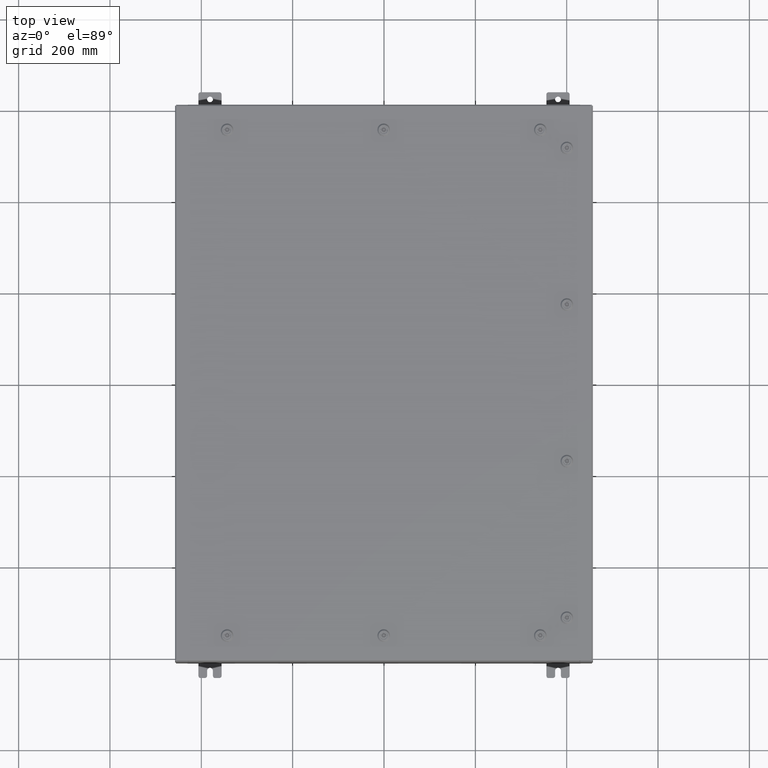
[diagram: clean part render]
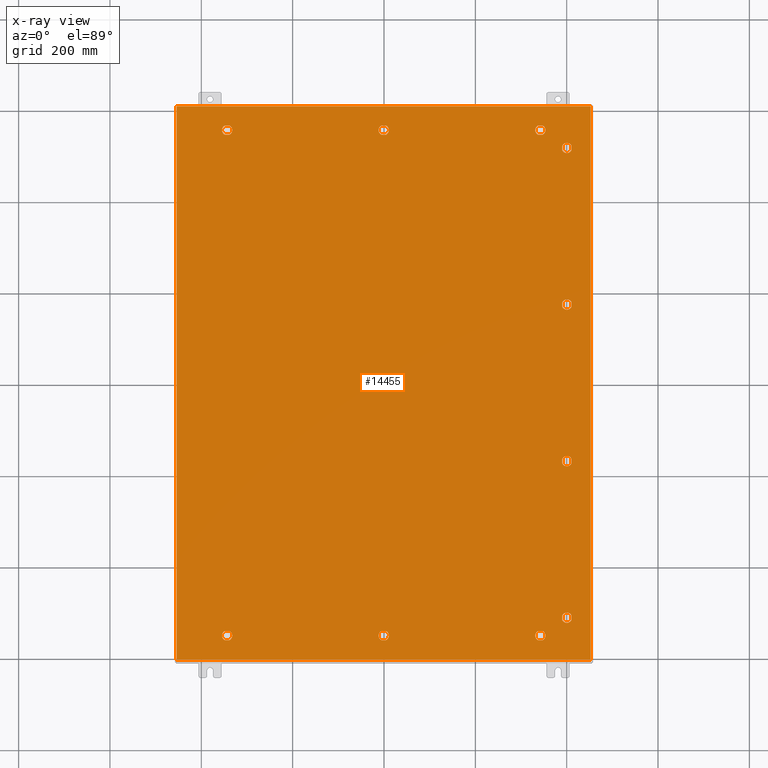
[diagram: x-ray — body ghosted, one internal face saturated and labeled with its STEP entity id]
A machine part, top view, then the same camera in x-ray: the body is ghosted and one INTERNAL B-rep face — a face not visible from any outside direction — is saturated and labeled: STEP entity #14455.
In plain terms, the highlighted planar face has unit normal (0, 0, -1).
Its self-contained STEP definition (entity closure, byte-faithful):
#259 = VERTEX_POINT ( 'NONE', #3543 ) ;
#353 = ORIENTED_EDGE ( 'NONE', *, *, #22186, .T. ) ;
#540 = CARTESIAN_POINT ( 'NONE',  ( -13.30054762473209900, -21.39280000000001500, -0.07470000000000003000 ) ) ;
#653 = AXIS2_PLACEMENT_3D ( 'NONE', #43645, #11892, #49036 ) ;
#719 = DIRECTION ( 'NONE',  ( -1.000000000000000000, 0.0000000000000000000, 0.0000000000000000000 ) ) ;
#1991 = CARTESIAN_POINT ( 'NONE',  ( 17.84980000000000200, 23.84980000000000200, -0.07470000000000000300 ) ) ;
#2097 = CARTESIAN_POINT ( 'NONE',  ( 0.1994523752679002700, -21.39280000000001200, -0.07470000000000003000 ) ) ;
#2119 = ORIENTED_EDGE ( 'NONE', *, *, #55891, .T. ) ;
#2140 = CIRCLE ( 'NONE', #42440, 0.4424999999999969000 ) ;
#2191 = LINE ( 'NONE', #540, #42847 ) ;
#2347 = DIRECTION ( 'NONE',  ( 1.000000000000000000, 1.095739467627836300E-014, 0.0000000000000000000 ) ) ;
#2380 = DIRECTION ( 'NONE',  ( -0.0000000000000000000, -0.0000000000000000000, 1.000000000000000000 ) ) ;
#2498 = CARTESIAN_POINT ( 'NONE',  ( -13.05749999999998900, 21.78780000000000400, -0.07470000000000003000 ) ) ;
#3031 = CIRCLE ( 'NONE', #67478, 0.4424999999999961700 ) ;
#3073 = AXIS2_PLACEMENT_3D ( 'NONE', #61284, #29471, #66613 ) ;
#3234 = EDGE_CURVE ( 'NONE', #46360, #62900, #5505, .T. ) ;
#3362 = CARTESIAN_POINT ( 'NONE',  ( -13.49999999999998600, 21.78780000000000400, -0.07470000000000003000 ) ) ;
#3398 = ORIENTED_EDGE ( 'NONE', *, *, #42547, .T. ) ;
#3543 = CARTESIAN_POINT ( 'NONE',  ( 13.69945237526786700, 22.18280000000000400, -0.07470000000000003000 ) ) ;
#3587 = EDGE_LOOP ( 'NONE', ( #44415, #39606, #31762, #38046 ) ) ;
#3611 = ORIENTED_EDGE ( 'NONE', *, *, #13021, .T. ) ;
#4068 = DIRECTION ( 'NONE',  ( -1.000000000000000000, 9.877868451667453200E-015, 0.0000000000000000000 ) ) ;
#4290 = CARTESIAN_POINT ( 'NONE',  ( 13.30054762473210200, 21.39280000000001200, -0.07470000000000003000 ) ) ;
#4327 = CARTESIAN_POINT ( 'NONE',  ( 13.30054762473209400, 22.18280000000000000, -0.07470000000000003000 ) ) ;
#4515 = LINE ( 'NONE', #15508, #31097 ) ;
#4676 = CIRCLE ( 'NONE', #49032, 0.4424999999999961700 ) ;
#4689 = CARTESIAN_POINT ( 'NONE',  ( -13.49999999999998600, 21.78780000000000400, -0.07470000000000003000 ) ) ;
#4802 = EDGE_CURVE ( 'NONE', #18909, #58110, #2191, .T. ) ;
#4856 = EDGE_CURVE ( 'NONE', #44115, #34907, #28819, .T. ) ;
#5166 = EDGE_CURVE ( 'NONE', #33087, #35261, #4676, .T. ) ;
#5201 = DIRECTION ( 'NONE',  ( -1.000000000000000000, 0.0000000000000000000, 0.0000000000000000000 ) ) ;
#5425 = CIRCLE ( 'NONE', #48385, 0.4424999999999972800 ) ;
#5505 = LINE ( 'NONE', #33917, #58729 ) ;
#5551 = CARTESIAN_POINT ( 'NONE',  ( -17.84979999999999500, 23.84980000000000200, -0.07470000000000000300 ) ) ;
#5859 = ORIENTED_EDGE ( 'NONE', *, *, #66644, .T. ) ;
#5885 = CARTESIAN_POINT ( 'NONE',  ( 1.529834876451987200E-014, -21.78780000000000400, -0.07470000000000003000 ) ) ;
#6000 = EDGE_LOOP ( 'NONE', ( #37485, #52992, #40583, #32308 ) ) ;
#6108 = LINE ( 'NONE', #19364, #45117 ) ;
#6143 = CARTESIAN_POINT ( 'NONE',  ( 13.49999999999998600, -21.78780000000000400, -0.07470000000000003000 ) ) ;
#6218 = AXIS2_PLACEMENT_3D ( 'NONE', #25699, #30982, #68138 ) ;
#6380 = EDGE_CURVE ( 'NONE', #36150, #259, #36980, .T. ) ;
#6877 = FACE_BOUND ( 'NONE', #23752, .T. ) ;
#6937 = CARTESIAN_POINT ( 'NONE',  ( 13.30054762473209500, -22.18280000000000000, -0.07470000000000003000 ) ) ;
#7144 = VECTOR ( 'NONE', #9163, 39.37007874015748100 ) ;
#7170 = CARTESIAN_POINT ( 'NONE',  ( 15.78780000000001500, 20.25000000000001400, -0.07470000000000003000 ) ) ;
#7318 = CIRCLE ( 'NONE', #10111, 0.4424999999999961700 ) ;
#7856 = VECTOR ( 'NONE', #41434, 39.37007874015748100 ) ;
#8008 = DIRECTION ( 'NONE',  ( -0.0000000000000000000, -0.0000000000000000000, 1.000000000000000000 ) ) ;
#8154 = VERTEX_POINT ( 'NONE', #37582 ) ;
#8559 = FACE_BOUND ( 'NONE', #64665, .T. ) ;
#8708 = DIRECTION ( 'NONE',  ( -1.000000000000000000, 0.0000000000000000000, 0.0000000000000000000 ) ) ;
#9163 = DIRECTION ( 'NONE',  ( -1.095739467627844000E-014, -1.000000000000000000, 0.0000000000000000000 ) ) ;
#10036 = DIRECTION ( 'NONE',  ( -1.000000000000000000, 0.0000000000000000000, 0.0000000000000000000 ) ) ;
#10078 = ORIENTED_EDGE ( 'NONE', *, *, #35316, .F. ) ;
#10111 = AXIS2_PLACEMENT_3D ( 'NONE', #14662, #51788, #20005 ) ;
#10715 = CIRCLE ( 'NONE', #28329, 0.4424999999999972800 ) ;
#10790 = ORIENTED_EDGE ( 'NONE', *, *, #51025, .T. ) ;
#10923 = ORIENTED_EDGE ( 'NONE', *, *, #11524, .T. ) ;
#11012 = EDGE_CURVE ( 'NONE', #26034, #18909, #19647, .T. ) ;
#11115 = DIRECTION ( 'NONE',  ( 1.000000000000000000, -0.0000000000000000000, -0.0000000000000000000 ) ) ;
#11193 = DIRECTION ( 'NONE',  ( -0.0000000000000000000, -0.0000000000000000000, 1.000000000000000000 ) ) ;
#11241 = DIRECTION ( 'NONE',  ( -1.000000000000000000, 0.0000000000000000000, 0.0000000000000000000 ) ) ;
#11284 = CIRCLE ( 'NONE', #46063, 0.4424999999999969000 ) ;
#11416 = DIRECTION ( 'NONE',  ( -1.000000000000000000, -0.0000000000000000000, -0.0000000000000000000 ) ) ;
#11511 = DIRECTION ( 'NONE',  ( -1.000000000000000000, -9.877868451667478400E-015, 0.0000000000000000000 ) ) ;
#11524 = EDGE_CURVE ( 'NONE', #59096, #32639, #29557, .T. ) ;
#11704 = CARTESIAN_POINT ( 'NONE',  ( -0.1994523752678657700, 22.18280000000000400, -0.07470000000000003000 ) ) ;
#11892 = DIRECTION ( 'NONE',  ( -0.0000000000000000000, -0.0000000000000000000, 1.000000000000000000 ) ) ;
#12051 = EDGE_CURVE ( 'NONE', #25671, #8154, #55291, .T. ) ;
#12070 = DIRECTION ( 'NONE',  ( -0.0000000000000000000, -0.0000000000000000000, 1.000000000000000000 ) ) ;
#12169 = CIRCLE ( 'NONE', #41188, 0.4424999999999983400 ) ;
#12518 = DIRECTION ( 'NONE',  ( -1.000000000000000000, 0.0000000000000000000, 0.0000000000000000000 ) ) ;
#12578 = EDGE_CURVE ( 'NONE', #27486, #66689, #24499, .T. ) ;
#12709 = CARTESIAN_POINT ( 'NONE',  ( 15.78780000000001000, 6.750000000000014200, -0.07470000000000003000 ) ) ;
#12773 = VERTEX_POINT ( 'NONE', #36614 ) ;
#13021 = EDGE_CURVE ( 'NONE', #55147, #36150, #25311, .T. ) ;
#13463 = VERTEX_POINT ( 'NONE', #21414 ) ;
#13488 = VERTEX_POINT ( 'NONE', #63901 ) ;
#13681 = ORIENTED_EDGE ( 'NONE', *, *, #3234, .T. ) ;
#13908 = CARTESIAN_POINT ( 'NONE',  ( -13.69945237526786900, 21.39280000000001200, -0.07470000000000003000 ) ) ;
#13966 = VERTEX_POINT ( 'NONE', #38465 ) ;
#14098 = EDGE_CURVE ( 'NONE', #58696, #65869, #20250, .T. ) ;
#14182 = DIRECTION ( 'NONE',  ( -0.0000000000000000000, -0.0000000000000000000, 1.000000000000000000 ) ) ;
#14455 = ADVANCED_FACE ( 'NONE', ( #50922, #36806, #8559, #63419, #49256, #35164, #21041, #6877, #61744, #47554, #33472 ), #57495, .T. ) ;
#14513 = DIRECTION ( 'NONE',  ( -0.0000000000000000000, -0.0000000000000000000, 1.000000000000000000 ) ) ;
#14662 = CARTESIAN_POINT ( 'NONE',  ( 15.78780000000001500, 20.25000000000001400, -0.07470000000000003000 ) ) ;
#14751 = CIRCLE ( 'NONE', #47344, 0.4424999999999983400 ) ;
#15508 = CARTESIAN_POINT ( 'NONE',  ( -17.84979999999999500, 23.84980000000000900, -0.07470000000000129300 ) ) ;
#15542 = VECTOR ( 'NONE', #57743, 39.37007874015748100 ) ;
#15736 = DIRECTION ( 'NONE',  ( -5.478697338139280800E-015, 1.000000000000000000, 0.0000000000000000000 ) ) ;
#15835 = ORIENTED_EDGE ( 'NONE', *, *, #37731, .T. ) ;
#16002 = CARTESIAN_POINT ( 'NONE',  ( -13.69945237526786700, 22.18280000000000400, -0.07470000000000003000 ) ) ;
#16237 = DIRECTION ( 'NONE',  ( -0.0000000000000000000, -0.0000000000000000000, 1.000000000000000000 ) ) ;
#16452 = CARTESIAN_POINT ( 'NONE',  ( -13.30054762473209200, -22.18280000000000400, -0.07470000000000003000 ) ) ;
#16459 = LINE ( 'NONE', #68467, #58850 ) ;
#17155 = CARTESIAN_POINT ( 'NONE',  ( 16.18280000000001100, 20.44945237526789600, -0.07470000000000000300 ) ) ;
#17524 = CARTESIAN_POINT ( 'NONE',  ( 1.529834876451987200E-014, 21.78780000000000400, -0.07470000000000003000 ) ) ;
#17824 = DIRECTION ( 'NONE',  ( 1.000000000000000000, 0.0000000000000000000, 0.0000000000000000000 ) ) ;
#17938 = EDGE_LOOP ( 'NONE', ( #50821, #10923, #65109, #18164, #63607 ) ) ;
#18085 = DIRECTION ( 'NONE',  ( -1.000000000000000000, 0.0000000000000000000, 0.0000000000000000000 ) ) ;
#18164 = ORIENTED_EDGE ( 'NONE', *, *, #62849, .T. ) ;
#18909 = VERTEX_POINT ( 'NONE', #32115 ) ;
#19227 = EDGE_CURVE ( 'NONE', #38899, #25241, #67144, .T. ) ;
#19364 = CARTESIAN_POINT ( 'NONE',  ( 13.30054762473210400, -21.39280000000001200, -0.07470000000000003000 ) ) ;
#19647 = CIRCLE ( 'NONE', #21723, 0.4424999999999961700 ) ;
#19676 = VECTOR ( 'NONE', #11416, 39.37007874015748100 ) ;
#19733 = EDGE_CURVE ( 'NONE', #53001, #13966, #62971, .T. ) ;
#20005 = DIRECTION ( 'NONE',  ( -1.000000000000000000, 0.0000000000000000000, 0.0000000000000000000 ) ) ;
#20250 = LINE ( 'NONE', #49596, #32654 ) ;
#20288 = ORIENTED_EDGE ( 'NONE', *, *, #66531, .T. ) ;
#20371 = CARTESIAN_POINT ( 'NONE',  ( 16.18280000000000400, -6.949452375267900300, -0.07470000000000003000 ) ) ;
#20562 = DIRECTION ( 'NONE',  ( -0.0000000000000000000, -0.0000000000000000000, 1.000000000000000000 ) ) ;
#20843 = DIRECTION ( 'NONE',  ( 0.0000000000000000000, -1.000000000000000000, 0.0000000000000000000 ) ) ;
#20988 = LINE ( 'NONE', #61390, #47509 ) ;
#21041 = FACE_BOUND ( 'NONE', #17938, .T. ) ;
#21314 = CARTESIAN_POINT ( 'NONE',  ( 0.1994523752678995500, 21.39280000000001200, -0.07470000000000000300 ) ) ;
#21333 = LINE ( 'NONE', #53913, #19676 ) ;
#21414 = CARTESIAN_POINT ( 'NONE',  ( 13.94249999999998500, -21.78780000000000400, -0.07470000000000003000 ) ) ;
#21453 = VERTEX_POINT ( 'NONE', #68186 ) ;
#21723 = AXIS2_PLACEMENT_3D ( 'NONE', #52348, #20562, #57705 ) ;
#21869 = VERTEX_POINT ( 'NONE', #39317 ) ;
#22108 = AXIS2_PLACEMENT_3D ( 'NONE', #45940, #14182, #51309 ) ;
#22186 = EDGE_CURVE ( 'NONE', #34907, #55729, #5425, .T. ) ;
#22410 = CARTESIAN_POINT ( 'NONE',  ( -13.05749999999998700, -21.78780000000000800, -0.07470000000000003000 ) ) ;
#22797 = AXIS2_PLACEMENT_3D ( 'NONE', #4689, #41771, #10036 ) ;
#23093 = CARTESIAN_POINT ( 'NONE',  ( 13.49999999999998600, 21.78780000000000400, -0.07470000000000003000 ) ) ;
#23100 = CARTESIAN_POINT ( 'NONE',  ( 15.39280000000001200, -6.550547624732131700, -0.07470000000000003000 ) ) ;
#23107 = EDGE_LOOP ( 'NONE', ( #28604, #13681, #31960, #65233 ) ) ;
#23240 = ORIENTED_EDGE ( 'NONE', *, *, #12578, .T. ) ;
#23331 = EDGE_CURVE ( 'NONE', #63773, #33087, #27225, .T. ) ;
#23342 = CIRCLE ( 'NONE', #33457, 0.4424999999999961700 ) ;
#23752 = EDGE_LOOP ( 'NONE', ( #3611, #66698, #20288, #54338, #64414 ) ) ;
#23904 = VECTOR ( 'NONE', #24847, 39.37007874015748100 ) ;
#24499 = CIRCLE ( 'NONE', #34214, 0.4424999999999983400 ) ;
#24514 = VECTOR ( 'NONE', #25140, 39.37007874015748100 ) ;
#24847 = DIRECTION ( 'NONE',  ( 1.095739467627844000E-014, -1.000000000000000000, 0.0000000000000000000 ) ) ;
#25002 = CARTESIAN_POINT ( 'NONE',  ( -17.84979999999999800, -23.84979999999999800, -0.07470000000000000300 ) ) ;
#25140 = DIRECTION ( 'NONE',  ( -1.095739467627835000E-014, -1.000000000000000000, 0.0000000000000000000 ) ) ;
#25193 = CARTESIAN_POINT ( 'NONE',  ( 13.69945237526787100, -21.39280000000001200, -0.07470000000000003000 ) ) ;
#25241 = VERTEX_POINT ( 'NONE', #26210 ) ;
#25311 = CIRCLE ( 'NONE', #57828, 0.4424999999999961700 ) ;
#25423 = VERTEX_POINT ( 'NONE', #28043 ) ;
#25590 = CARTESIAN_POINT ( 'NONE',  ( -13.30054762473210200, 21.39280000000001200, -0.07470000000000000300 ) ) ;
#25671 = VERTEX_POINT ( 'NONE', #25002 ) ;
#25699 = CARTESIAN_POINT ( 'NONE',  ( 0.0000000000000000000, 0.0000000000000000000, -0.07470000000000000300 ) ) ;
#25824 = VERTEX_POINT ( 'NONE', #41401 ) ;
#26034 = VERTEX_POINT ( 'NONE', #22410 ) ;
#26156 = DIRECTION ( 'NONE',  ( -0.0000000000000000000, -0.0000000000000000000, 1.000000000000000000 ) ) ;
#26210 = CARTESIAN_POINT ( 'NONE',  ( 13.30054762473210200, 21.39280000000001200, -0.07470000000000003000 ) ) ;
#26254 = CIRCLE ( 'NONE', #3073, 0.4424999999999983400 ) ;
#26518 = CARTESIAN_POINT ( 'NONE',  ( -13.49999999999998200, -21.78780000000000800, -0.07470000000000003000 ) ) ;
#26558 = CARTESIAN_POINT ( 'NONE',  ( 15.78780000000000800, -6.750000000000014200, -0.07470000000000003000 ) ) ;
#27225 = LINE ( 'NONE', #61999, #23904 ) ;
#27486 = VERTEX_POINT ( 'NONE', #2498 ) ;
#27707 = DIRECTION ( 'NONE',  ( 1.095739467627835000E-014, -1.000000000000000000, 0.0000000000000000000 ) ) ;
#27900 = VECTOR ( 'NONE', #2347, 39.37007874015748100 ) ;
#28043 = CARTESIAN_POINT ( 'NONE',  ( 15.39280000000001500, -6.949452375267905600, -0.07470000000000000300 ) ) ;
#28329 = AXIS2_PLACEMENT_3D ( 'NONE', #5885, #42979, #11241 ) ;
#28336 = CARTESIAN_POINT ( 'NONE',  ( 0.1994523752678995500, -21.39280000000001200, -0.07470000000000003000 ) ) ;
#28551 = VERTEX_POINT ( 'NONE', #58608 ) ;
#28604 = ORIENTED_EDGE ( 'NONE', *, *, #64940, .T. ) ;
#28819 = CIRCLE ( 'NONE', #46772, 0.4424999999999972800 ) ;
#28848 = CARTESIAN_POINT ( 'NONE',  ( 0.1994523752679067700, -22.18280000000000000, -0.07470000000000003000 ) ) ;
#28969 = LINE ( 'NONE', #42972, #43003 ) ;
#29471 = DIRECTION ( 'NONE',  ( -0.0000000000000000000, -0.0000000000000000000, 1.000000000000000000 ) ) ;
#29557 = LINE ( 'NONE', #28848, #27900 ) ;
#29574 = DIRECTION ( 'NONE',  ( 0.0000000000000000000, 1.000000000000000000, 0.0000000000000000000 ) ) ;
#29959 = DIRECTION ( 'NONE',  ( -0.0000000000000000000, -0.0000000000000000000, 1.000000000000000000 ) ) ;
#30052 = LINE ( 'NONE', #62601, #56639 ) ;
#30139 = CARTESIAN_POINT ( 'NONE',  ( -13.49999999999998600, 21.78780000000000400, -0.07470000000000003000 ) ) ;
#30384 = VERTEX_POINT ( 'NONE', #53025 ) ;
#30533 = ORIENTED_EDGE ( 'NONE', *, *, #12051, .F. ) ;
#30951 = CARTESIAN_POINT ( 'NONE',  ( 1.529834876451987200E-014, 21.78780000000000400, -0.07470000000000003000 ) ) ;
#30982 = DIRECTION ( 'NONE',  ( 0.0000000000000000000, 0.0000000000000000000, -1.000000000000000000 ) ) ;
#31038 = ORIENTED_EDGE ( 'NONE', *, *, #19733, .T. ) ;
#31097 = VECTOR ( 'NONE', #20843, 39.37007874015748100 ) ;
#31485 = VECTOR ( 'NONE', #35670, 39.37007874015748100 ) ;
#31762 = ORIENTED_EDGE ( 'NONE', *, *, #5166, .T. ) ;
#31820 = DIRECTION ( 'NONE',  ( -1.000000000000000000, 0.0000000000000000000, 0.0000000000000000000 ) ) ;
#31858 = DIRECTION ( 'NONE',  ( -1.000000000000000000, 0.0000000000000000000, 0.0000000000000000000 ) ) ;
#31960 = ORIENTED_EDGE ( 'NONE', *, *, #49332, .T. ) ;
#31978 = ORIENTED_EDGE ( 'NONE', *, *, #32394, .T. ) ;
#32115 = CARTESIAN_POINT ( 'NONE',  ( -13.30054762473209900, -21.39280000000001500, -0.07470000000000003000 ) ) ;
#32284 = CARTESIAN_POINT ( 'NONE',  ( 16.18280000000001500, -20.44945237526789600, -0.07470000000000003000 ) ) ;
#32308 = ORIENTED_EDGE ( 'NONE', *, *, #35122, .T. ) ;
#32345 = DIRECTION ( 'NONE',  ( -1.000000000000000000, 1.095739467627836300E-014, 0.0000000000000000000 ) ) ;
#32394 = EDGE_CURVE ( 'NONE', #13463, #45194, #40587, .T. ) ;
#32398 = EDGE_CURVE ( 'NONE', #35933, #25423, #42210, .T. ) ;
#32515 = DIRECTION ( 'NONE',  ( -0.0000000000000000000, -0.0000000000000000000, 1.000000000000000000 ) ) ;
#32639 = VERTEX_POINT ( 'NONE', #66810 ) ;
#32654 = VECTOR ( 'NONE', #17824, 39.37007874015748100 ) ;
#32839 = AXIS2_PLACEMENT_3D ( 'NONE', #7170, #44264, #12518 ) ;
#33087 = VERTEX_POINT ( 'NONE', #42557 ) ;
#33263 = VERTEX_POINT ( 'NONE', #44178 ) ;
#33456 = ORIENTED_EDGE ( 'NONE', *, *, #62296, .T. ) ;
#33457 = AXIS2_PLACEMENT_3D ( 'NONE', #26518, #63676, #31820 ) ;
#33469 = EDGE_LOOP ( 'NONE', ( #47010, #31978, #40936, #2119, #31038 ) ) ;
#33472 = FACE_OUTER_BOUND ( 'NONE', #36129, .T. ) ;
#33917 = CARTESIAN_POINT ( 'NONE',  ( 16.18280000000000700, 6.949452375267900300, -0.07470000000000003000 ) ) ;
#33931 = EDGE_LOOP ( 'NONE', ( #63861, #57586, #57886, #353, #15835 ) ) ;
#33942 = EDGE_CURVE ( 'NONE', #12773, #30384, #64643, .T. ) ;
#34206 = CARTESIAN_POINT ( 'NONE',  ( 13.49999999999998600, 21.78780000000000400, -0.07470000000000003000 ) ) ;
#34214 = AXIS2_PLACEMENT_3D ( 'NONE', #30139, #67282, #35468 ) ;
#34342 = CARTESIAN_POINT ( 'NONE',  ( 13.30054762473210400, -21.39280000000001200, -0.07470000000000000300 ) ) ;
#34817 = DIRECTION ( 'NONE',  ( -0.0000000000000000000, -0.0000000000000000000, 1.000000000000000000 ) ) ;
#34907 = VERTEX_POINT ( 'NONE', #65033 ) ;
#35122 = EDGE_CURVE ( 'NONE', #51633, #25824, #45388, .T. ) ;
#35132 = EDGE_CURVE ( 'NONE', #13488, #63773, #3031, .T. ) ;
#35164 = FACE_BOUND ( 'NONE', #65254, .T. ) ;
#35261 = VERTEX_POINT ( 'NONE', #32284 ) ;
#35272 = EDGE_CURVE ( 'NONE', #13966, #13463, #12169, .T. ) ;
#35316 = EDGE_CURVE ( 'NONE', #37100, #58468, #21333, .T. ) ;
#35396 = CARTESIAN_POINT ( 'NONE',  ( 13.30054762473209500, -22.18280000000000000, -0.07470000000000003000 ) ) ;
#35468 = DIRECTION ( 'NONE',  ( -1.000000000000000000, 0.0000000000000000000, 0.0000000000000000000 ) ) ;
#35670 = DIRECTION ( 'NONE',  ( 1.000000000000000000, 0.0000000000000000000, 0.0000000000000000000 ) ) ;
#35933 = VERTEX_POINT ( 'NONE', #23100 ) ;
#35984 = VERTEX_POINT ( 'NONE', #44608 ) ;
#36019 = CARTESIAN_POINT ( 'NONE',  ( 15.39280000000001400, 6.550547624732131700, -0.07470000000000003000 ) ) ;
#36129 = EDGE_LOOP ( 'NONE', ( #46696, #30533, #45236, #10078 ) ) ;
#36150 = VERTEX_POINT ( 'NONE', #40650 ) ;
#36316 = DIRECTION ( 'NONE',  ( -1.000000000000000000, 0.0000000000000000000, 0.0000000000000000000 ) ) ;
#36345 = DIRECTION ( 'NONE',  ( -0.0000000000000000000, -0.0000000000000000000, 1.000000000000000000 ) ) ;
#36571 = DIRECTION ( 'NONE',  ( -5.478697338139235000E-015, 1.000000000000000000, 0.0000000000000000000 ) ) ;
#36614 = CARTESIAN_POINT ( 'NONE',  ( -13.69945237526786600, -22.18280000000000700, -0.07470000000000003000 ) ) ;
#36784 = CARTESIAN_POINT ( 'NONE',  ( 16.18280000000000400, -6.949452375267900300, -0.07470000000000003000 ) ) ;
#36806 = FACE_BOUND ( 'NONE', #6000, .T. ) ;
#36980 = CIRCLE ( 'NONE', #59340, 0.4424999999999961700 ) ;
#37100 = VERTEX_POINT ( 'NONE', #1991 ) ;
#37191 = EDGE_CURVE ( 'NONE', #35984, #44115, #47230, .T. ) ;
#37485 = ORIENTED_EDGE ( 'NONE', *, *, #55024, .T. ) ;
#37582 = CARTESIAN_POINT ( 'NONE',  ( 17.84980000000000200, -23.84979999999999800, -0.07470000000000000300 ) ) ;
#37731 = EDGE_CURVE ( 'NONE', #55729, #37838, #28969, .T. ) ;
#37838 = VERTEX_POINT ( 'NONE', #11704 ) ;
#38046 = ORIENTED_EDGE ( 'NONE', *, *, #62452, .T. ) ;
#38156 = AXIS2_PLACEMENT_3D ( 'NONE', #3362, #40476, #8708 ) ;
#38465 = CARTESIAN_POINT ( 'NONE',  ( 13.69945237526786900, -22.18280000000000400, -0.07470000000000003000 ) ) ;
#38521 = CARTESIAN_POINT ( 'NONE',  ( 16.18280000000000700, 6.550547624732131700, -0.07470000000000003000 ) ) ;
#38899 = VERTEX_POINT ( 'NONE', #51200 ) ;
#39070 = CIRCLE ( 'NONE', #22797, 0.4424999999999961700 ) ;
#39317 = CARTESIAN_POINT ( 'NONE',  ( 0.4425000000000125500, -21.78780000000000400, -0.07470000000000003000 ) ) ;
#39368 = CIRCLE ( 'NONE', #38156, 0.4424999999999983400 ) ;
#39379 = CIRCLE ( 'NONE', #32839, 0.4424999999999961700 ) ;
#39507 = DIRECTION ( 'NONE',  ( -1.000000000000000000, 0.0000000000000000000, 0.0000000000000000000 ) ) ;
#39606 = ORIENTED_EDGE ( 'NONE', *, *, #23331, .T. ) ;
#39785 = CARTESIAN_POINT ( 'NONE',  ( -13.49999999999998200, -21.78780000000000800, -0.07470000000000003000 ) ) ;
#39871 = ORIENTED_EDGE ( 'NONE', *, *, #14098, .T. ) ;
#40025 = AXIS2_PLACEMENT_3D ( 'NONE', #12709, #49865, #18085 ) ;
#40476 = DIRECTION ( 'NONE',  ( -0.0000000000000000000, -0.0000000000000000000, 1.000000000000000000 ) ) ;
#40583 = ORIENTED_EDGE ( 'NONE', *, *, #60038, .T. ) ;
#40587 = CIRCLE ( 'NONE', #653, 0.4424999999999983400 ) ;
#40650 = CARTESIAN_POINT ( 'NONE',  ( 13.94249999999998300, 21.78780000000000400, -0.07470000000000003000 ) ) ;
#40916 = CARTESIAN_POINT ( 'NONE',  ( 15.39280000000002200, 20.44945237526790300, -0.07470000000000003000 ) ) ;
#40936 = ORIENTED_EDGE ( 'NONE', *, *, #67429, .T. ) ;
#41188 = AXIS2_PLACEMENT_3D ( 'NONE', #64373, #32515, #719 ) ;
#41401 = CARTESIAN_POINT ( 'NONE',  ( 16.18280000000000700, -6.550547624732131700, -0.07470000000000003000 ) ) ;
#41434 = DIRECTION ( 'NONE',  ( -1.000000000000000000, -1.095739467627832000E-014, 0.0000000000000000000 ) ) ;
#41771 = DIRECTION ( 'NONE',  ( -0.0000000000000000000, -0.0000000000000000000, 1.000000000000000000 ) ) ;
#42105 = ORIENTED_EDGE ( 'NONE', *, *, #46440, .T. ) ;
#42210 = LINE ( 'NONE', #59516, #67226 ) ;
#42391 = VERTEX_POINT ( 'NONE', #49338 ) ;
#42440 = AXIS2_PLACEMENT_3D ( 'NONE', #30951, #68113, #36316 ) ;
#42547 = EDGE_CURVE ( 'NONE', #58110, #12773, #63636, .T. ) ;
#42557 = CARTESIAN_POINT ( 'NONE',  ( 15.39280000000002800, -20.44945237526790300, -0.07470000000000000300 ) ) ;
#42721 = EDGE_CURVE ( 'NONE', #33263, #28551, #47822, .T. ) ;
#42830 = EDGE_CURVE ( 'NONE', #37838, #35984, #2140, .T. ) ;
#42847 = VECTOR ( 'NONE', #5201, 39.37007874015748100 ) ;
#42882 = AXIS2_PLACEMENT_3D ( 'NONE', #61769, #29959, #67099 ) ;
#42939 = CARTESIAN_POINT ( 'NONE',  ( 1.529834876451987200E-014, -21.78780000000000400, -0.07470000000000003000 ) ) ;
#42972 = CARTESIAN_POINT ( 'NONE',  ( 0.1994523752679067700, 22.18280000000000000, -0.07470000000000003000 ) ) ;
#42979 = DIRECTION ( 'NONE',  ( -0.0000000000000000000, -0.0000000000000000000, 1.000000000000000000 ) ) ;
#42982 = EDGE_CURVE ( 'NONE', #52730, #59096, #11284, .T. ) ;
#43003 = VECTOR ( 'NONE', #32345, 39.37007874015748100 ) ;
#43236 = DIRECTION ( 'NONE',  ( -0.0000000000000000000, -0.0000000000000000000, 1.000000000000000000 ) ) ;
#43314 = ORIENTED_EDGE ( 'NONE', *, *, #33942, .T. ) ;
#43645 = CARTESIAN_POINT ( 'NONE',  ( 13.49999999999998600, -21.78780000000000400, -0.07470000000000003000 ) ) ;
#43785 = AXIS2_PLACEMENT_3D ( 'NONE', #39785, #8008, #45102 ) ;
#43832 = CARTESIAN_POINT ( 'NONE',  ( 1.529834876451987200E-014, -21.78780000000000400, -0.07470000000000003000 ) ) ;
#43965 = CIRCLE ( 'NONE', #42882, 0.4424999999999983400 ) ;
#43984 = CARTESIAN_POINT ( 'NONE',  ( -0.1994523752678657700, -22.18280000000000400, -0.07470000000000003000 ) ) ;
#44115 = VERTEX_POINT ( 'NONE', #21314 ) ;
#44178 = CARTESIAN_POINT ( 'NONE',  ( 15.39280000000002200, 20.44945237526790300, -0.07470000000000003000 ) ) ;
#44264 = DIRECTION ( 'NONE',  ( -0.0000000000000000000, -0.0000000000000000000, 1.000000000000000000 ) ) ;
#44415 = ORIENTED_EDGE ( 'NONE', *, *, #35132, .T. ) ;
#44426 = DIRECTION ( 'NONE',  ( -1.000000000000000000, 0.0000000000000000000, 0.0000000000000000000 ) ) ;
#44608 = CARTESIAN_POINT ( 'NONE',  ( -0.1994523752678689600, 21.39280000000001200, -0.07470000000000003000 ) ) ;
#44935 = EDGE_CURVE ( 'NONE', #65869, #27486, #39368, .T. ) ;
#45058 = ORIENTED_EDGE ( 'NONE', *, *, #42721, .T. ) ;
#45102 = DIRECTION ( 'NONE',  ( -1.000000000000000000, 0.0000000000000000000, 0.0000000000000000000 ) ) ;
#45117 = VECTOR ( 'NONE', #67171, 39.37007874015748100 ) ;
#45184 = LINE ( 'NONE', #52632, #57725 ) ;
#45194 = VERTEX_POINT ( 'NONE', #25193 ) ;
#45236 = ORIENTED_EDGE ( 'NONE', *, *, #66605, .F. ) ;
#45388 = LINE ( 'NONE', #20371, #15542 ) ;
#45595 = LINE ( 'NONE', #4290, #31485 ) ;
#45830 = CARTESIAN_POINT ( 'NONE',  ( -13.69945237526786700, -21.39280000000001500, -0.07470000000000003000 ) ) ;
#45831 = EDGE_CURVE ( 'NONE', #21453, #68244, #54420, .T. ) ;
#45940 = CARTESIAN_POINT ( 'NONE',  ( 13.49999999999998600, 21.78780000000000400, -0.07470000000000003000 ) ) ;
#46063 = AXIS2_PLACEMENT_3D ( 'NONE', #42939, #11193, #48326 ) ;
#46279 = CARTESIAN_POINT ( 'NONE',  ( 1.529834876451987200E-014, 21.78780000000000400, -0.07470000000000003000 ) ) ;
#46360 = VERTEX_POINT ( 'NONE', #38521 ) ;
#46440 = EDGE_CURVE ( 'NONE', #28551, #42391, #39379, .T. ) ;
#46696 = ORIENTED_EDGE ( 'NONE', *, *, #57370, .F. ) ;
#46772 = AXIS2_PLACEMENT_3D ( 'NONE', #17524, #36345, #4068 ) ;
#47010 = ORIENTED_EDGE ( 'NONE', *, *, #35272, .T. ) ;
#47230 = LINE ( 'NONE', #50291, #59752 ) ;
#47271 = ORIENTED_EDGE ( 'NONE', *, *, #58232, .T. ) ;
#47344 = AXIS2_PLACEMENT_3D ( 'NONE', #26558, #63717, #31858 ) ;
#47509 = VECTOR ( 'NONE', #29574, 39.37007874015748100 ) ;
#47554 = FACE_BOUND ( 'NONE', #33931, .T. ) ;
#47822 = LINE ( 'NONE', #40916, #7144 ) ;
#48222 = DIRECTION ( 'NONE',  ( 1.000000000000000000, 1.095739467627832000E-014, 0.0000000000000000000 ) ) ;
#48249 = CARTESIAN_POINT ( 'NONE',  ( -17.84979999999999800, -23.84980000000000200, -0.07469999999999804600 ) ) ;
#48326 = DIRECTION ( 'NONE',  ( -1.000000000000000000, 0.0000000000000000000, 0.0000000000000000000 ) ) ;
#48372 = ORIENTED_EDGE ( 'NONE', *, *, #51122, .T. ) ;
#48385 = AXIS2_PLACEMENT_3D ( 'NONE', #46279, #14513, #51645 ) ;
#49032 = AXIS2_PLACEMENT_3D ( 'NONE', #68836, #16237, #68603 ) ;
#49036 = DIRECTION ( 'NONE',  ( -1.000000000000000000, 0.0000000000000000000, 0.0000000000000000000 ) ) ;
#49176 = VERTEX_POINT ( 'NONE', #17155 ) ;
#49225 = DIRECTION ( 'NONE',  ( -1.000000000000000000, 9.877868451667453200E-015, 0.0000000000000000000 ) ) ;
#49256 = FACE_BOUND ( 'NONE', #33469, .T. ) ;
#49332 = EDGE_CURVE ( 'NONE', #62900, #21453, #64166, .T. ) ;
#49338 = CARTESIAN_POINT ( 'NONE',  ( 16.18280000000001500, 20.05054762473213300, -0.07470000000000003000 ) ) ;
#49596 = CARTESIAN_POINT ( 'NONE',  ( -13.30054762473210200, 21.39280000000001200, -0.07470000000000003000 ) ) ;
#49865 = DIRECTION ( 'NONE',  ( -0.0000000000000000000, -0.0000000000000000000, 1.000000000000000000 ) ) ;
#50146 = CIRCLE ( 'NONE', #55443, 0.4424999999999961700 ) ;
#50291 = CARTESIAN_POINT ( 'NONE',  ( 0.1994523752678995500, 21.39280000000001200, -0.07470000000000003000 ) ) ;
#50483 = VECTOR ( 'NONE', #67206, 39.37007874015748100 ) ;
#50803 = VECTOR ( 'NONE', #44426, 39.37007874015748100 ) ;
#50821 = ORIENTED_EDGE ( 'NONE', *, *, #42982, .T. ) ;
#50922 = FACE_BOUND ( 'NONE', #3587, .T. ) ;
#51025 = EDGE_CURVE ( 'NONE', #60463, #58696, #39070, .T. ) ;
#51122 = EDGE_CURVE ( 'NONE', #30384, #26034, #23342, .T. ) ;
#51200 = CARTESIAN_POINT ( 'NONE',  ( 13.30054762473209400, 22.18280000000000000, -0.07470000000000000300 ) ) ;
#51309 = DIRECTION ( 'NONE',  ( -1.000000000000000000, 0.0000000000000000000, 0.0000000000000000000 ) ) ;
#51351 = CARTESIAN_POINT ( 'NONE',  ( 15.39280000000001900, 6.949452375267904700, -0.07470000000000003000 ) ) ;
#51510 = AXIS2_PLACEMENT_3D ( 'NONE', #43832, #12070, #49225 ) ;
#51633 = VERTEX_POINT ( 'NONE', #36784 ) ;
#51645 = DIRECTION ( 'NONE',  ( -1.000000000000000000, 0.0000000000000000000, 0.0000000000000000000 ) ) ;
#51788 = DIRECTION ( 'NONE',  ( -0.0000000000000000000, -0.0000000000000000000, 1.000000000000000000 ) ) ;
#52348 = CARTESIAN_POINT ( 'NONE',  ( -13.49999999999998200, -21.78780000000000800, -0.07470000000000003000 ) ) ;
#52401 = CARTESIAN_POINT ( 'NONE',  ( 0.1994523752679049900, 22.18280000000000000, -0.07470000000000003000 ) ) ;
#52632 = CARTESIAN_POINT ( 'NONE',  ( 16.18280000000001100, 20.44945237526789600, -0.07470000000000003000 ) ) ;
#52726 = ORIENTED_EDGE ( 'NONE', *, *, #11012, .T. ) ;
#52730 = VERTEX_POINT ( 'NONE', #62747 ) ;
#52992 = ORIENTED_EDGE ( 'NONE', *, *, #32398, .T. ) ;
#53001 = VERTEX_POINT ( 'NONE', #6937 ) ;
#53025 = CARTESIAN_POINT ( 'NONE',  ( -13.30054762473209200, -22.18280000000000400, -0.07470000000000000300 ) ) ;
#53129 = VERTEX_POINT ( 'NONE', #34342 ) ;
#53602 = VECTOR ( 'NONE', #11115, 39.37007874015748100 ) ;
#53913 = CARTESIAN_POINT ( 'NONE',  ( 17.84980000000000200, 23.84980000000000900, -0.07469999999999804600 ) ) ;
#54168 = LINE ( 'NONE', #28336, #50803 ) ;
#54338 = ORIENTED_EDGE ( 'NONE', *, *, #19227, .T. ) ;
#54420 = LINE ( 'NONE', #51351, #24514 ) ;
#55024 = EDGE_CURVE ( 'NONE', #25824, #35933, #14751, .T. ) ;
#55147 = VERTEX_POINT ( 'NONE', #59746 ) ;
#55275 = DIRECTION ( 'NONE',  ( -1.000000000000000000, 0.0000000000000000000, 0.0000000000000000000 ) ) ;
#55291 = LINE ( 'NONE', #48249, #53602 ) ;
#55443 = AXIS2_PLACEMENT_3D ( 'NONE', #6143, #43236, #11511 ) ;
#55660 = DIRECTION ( 'NONE',  ( 1.000000000000000000, 0.0000000000000000000, 0.0000000000000000000 ) ) ;
#55729 = VERTEX_POINT ( 'NONE', #52401 ) ;
#55891 = EDGE_CURVE ( 'NONE', #53129, #53001, #50146, .T. ) ;
#56639 = VECTOR ( 'NONE', #67911, 39.37007874015748100 ) ;
#57370 = EDGE_CURVE ( 'NONE', #8154, #37100, #20988, .T. ) ;
#57495 = PLANE ( 'NONE',  #6218 ) ;
#57586 = ORIENTED_EDGE ( 'NONE', *, *, #37191, .T. ) ;
#57705 = DIRECTION ( 'NONE',  ( -1.000000000000000000, 0.0000000000000000000, 0.0000000000000000000 ) ) ;
#57725 = VECTOR ( 'NONE', #15736, 39.37007874015748100 ) ;
#57743 = DIRECTION ( 'NONE',  ( 5.478697338139235000E-015, 1.000000000000000000, 0.0000000000000000000 ) ) ;
#57828 = AXIS2_PLACEMENT_3D ( 'NONE', #34206, #2380, #39507 ) ;
#57886 = ORIENTED_EDGE ( 'NONE', *, *, #4856, .T. ) ;
#57976 = CARTESIAN_POINT ( 'NONE',  ( 15.78780000000001800, -20.25000000000001400, -0.07470000000000003000 ) ) ;
#57992 = EDGE_CURVE ( 'NONE', #61444, #52730, #54168, .T. ) ;
#58110 = VERTEX_POINT ( 'NONE', #45830 ) ;
#58139 = EDGE_LOOP ( 'NONE', ( #10790, #39871, #66769, #23240, #47271 ) ) ;
#58232 = EDGE_CURVE ( 'NONE', #66689, #60463, #30052, .T. ) ;
#58468 = VERTEX_POINT ( 'NONE', #5551 ) ;
#58608 = CARTESIAN_POINT ( 'NONE',  ( 15.39280000000001900, 20.05054762473213300, -0.07470000000000003000 ) ) ;
#58696 = VERTEX_POINT ( 'NONE', #13908 ) ;
#58729 = VECTOR ( 'NONE', #36571, 39.37007874015748100 ) ;
#58850 = VECTOR ( 'NONE', #63174, 39.37007874015748100 ) ;
#59096 = VERTEX_POINT ( 'NONE', #43984 ) ;
#59340 = AXIS2_PLACEMENT_3D ( 'NONE', #23093, #34817, #55275 ) ;
#59516 = CARTESIAN_POINT ( 'NONE',  ( 15.39280000000001500, -6.949452375267904700, -0.07470000000000003000 ) ) ;
#59746 = CARTESIAN_POINT ( 'NONE',  ( 13.69945237526786900, 21.39280000000001200, -0.07470000000000003000 ) ) ;
#59752 = VECTOR ( 'NONE', #55660, 39.37007874015748100 ) ;
#60038 = EDGE_CURVE ( 'NONE', #25423, #51633, #43965, .T. ) ;
#60463 = VERTEX_POINT ( 'NONE', #16002 ) ;
#61020 = EDGE_CURVE ( 'NONE', #25241, #55147, #45595, .T. ) ;
#61201 = EDGE_CURVE ( 'NONE', #32639, #21869, #10715, .T. ) ;
#61284 = CARTESIAN_POINT ( 'NONE',  ( 15.78780000000001000, 6.750000000000014200, -0.07470000000000003000 ) ) ;
#61306 = CIRCLE ( 'NONE', #51510, 0.4424999999999972800 ) ;
#61390 = CARTESIAN_POINT ( 'NONE',  ( 17.84980000000000200, -23.84980000000000200, -0.07470000000000019700 ) ) ;
#61444 = VERTEX_POINT ( 'NONE', #2097 ) ;
#61530 = ORIENTED_EDGE ( 'NONE', *, *, #4802, .T. ) ;
#61744 = FACE_BOUND ( 'NONE', #58139, .T. ) ;
#61769 = CARTESIAN_POINT ( 'NONE',  ( 15.78780000000000800, -6.750000000000014200, -0.07470000000000003000 ) ) ;
#61999 = CARTESIAN_POINT ( 'NONE',  ( 15.39280000000002800, -20.44945237526790300, -0.07470000000000003000 ) ) ;
#62213 = CARTESIAN_POINT ( 'NONE',  ( 15.39280000000002200, -20.05054762473213300, -0.07470000000000003000 ) ) ;
#62296 = EDGE_CURVE ( 'NONE', #49176, #33263, #7318, .T. ) ;
#62452 = EDGE_CURVE ( 'NONE', #35261, #13488, #16459, .T. ) ;
#62601 = CARTESIAN_POINT ( 'NONE',  ( -13.30054762473209400, 22.18280000000000000, -0.07470000000000003000 ) ) ;
#62747 = CARTESIAN_POINT ( 'NONE',  ( -0.1994523752678689600, -21.39280000000001200, -0.07470000000000003000 ) ) ;
#62849 = EDGE_CURVE ( 'NONE', #21869, #61444, #61306, .T. ) ;
#62900 = VERTEX_POINT ( 'NONE', #65864 ) ;
#62971 = LINE ( 'NONE', #35396, #50483 ) ;
#62981 = VECTOR ( 'NONE', #48222, 39.37007874015748100 ) ;
#63174 = DIRECTION ( 'NONE',  ( 5.478697338139280800E-015, 1.000000000000000000, 0.0000000000000000000 ) ) ;
#63314 = DIRECTION ( 'NONE',  ( -1.000000000000000000, 0.0000000000000000000, 0.0000000000000000000 ) ) ;
#63419 = FACE_BOUND ( 'NONE', #23107, .T. ) ;
#63607 = ORIENTED_EDGE ( 'NONE', *, *, #57992, .T. ) ;
#63636 = CIRCLE ( 'NONE', #43785, 0.4424999999999983400 ) ;
#63676 = DIRECTION ( 'NONE',  ( -0.0000000000000000000, -0.0000000000000000000, 1.000000000000000000 ) ) ;
#63717 = DIRECTION ( 'NONE',  ( -0.0000000000000000000, -0.0000000000000000000, 1.000000000000000000 ) ) ;
#63773 = VERTEX_POINT ( 'NONE', #62213 ) ;
#63861 = ORIENTED_EDGE ( 'NONE', *, *, #42830, .T. ) ;
#63901 = CARTESIAN_POINT ( 'NONE',  ( 16.18280000000001800, -20.05054762473213300, -0.07470000000000003000 ) ) ;
#64166 = CIRCLE ( 'NONE', #40025, 0.4424999999999983400 ) ;
#64373 = CARTESIAN_POINT ( 'NONE',  ( 13.49999999999998600, -21.78780000000000400, -0.07470000000000003000 ) ) ;
#64389 = LINE ( 'NONE', #4327, #7856 ) ;
#64414 = ORIENTED_EDGE ( 'NONE', *, *, #61020, .T. ) ;
#64643 = LINE ( 'NONE', #16452, #62981 ) ;
#64665 = EDGE_LOOP ( 'NONE', ( #42105, #5859, #33456, #45058 ) ) ;
#64940 = EDGE_CURVE ( 'NONE', #68244, #46360, #26254, .T. ) ;
#65033 = CARTESIAN_POINT ( 'NONE',  ( 0.4425000000000125500, 21.78780000000000400, -0.07470000000000003000 ) ) ;
#65109 = ORIENTED_EDGE ( 'NONE', *, *, #61201, .T. ) ;
#65233 = ORIENTED_EDGE ( 'NONE', *, *, #45831, .T. ) ;
#65254 = EDGE_LOOP ( 'NONE', ( #3398, #43314, #48372, #52726, #61530 ) ) ;
#65864 = CARTESIAN_POINT ( 'NONE',  ( 16.18280000000000700, 6.949452375267900300, -0.07470000000000000300 ) ) ;
#65869 = VERTEX_POINT ( 'NONE', #25590 ) ;
#66531 = EDGE_CURVE ( 'NONE', #259, #38899, #64389, .T. ) ;
#66605 = EDGE_CURVE ( 'NONE', #58468, #25671, #4515, .T. ) ;
#66613 = DIRECTION ( 'NONE',  ( -1.000000000000000000, 2.469467112916857400E-015, 0.0000000000000000000 ) ) ;
#66644 = EDGE_CURVE ( 'NONE', #42391, #49176, #45184, .T. ) ;
#66689 = VERTEX_POINT ( 'NONE', #68851 ) ;
#66698 = ORIENTED_EDGE ( 'NONE', *, *, #6380, .T. ) ;
#66769 = ORIENTED_EDGE ( 'NONE', *, *, #44935, .T. ) ;
#66810 = CARTESIAN_POINT ( 'NONE',  ( 0.1994523752679054600, -22.18280000000000400, -0.07470000000000000300 ) ) ;
#67099 = DIRECTION ( 'NONE',  ( -1.000000000000000000, 0.0000000000000000000, 0.0000000000000000000 ) ) ;
#67144 = CIRCLE ( 'NONE', #22108, 0.4424999999999983400 ) ;
#67171 = DIRECTION ( 'NONE',  ( -1.000000000000000000, 0.0000000000000000000, 0.0000000000000000000 ) ) ;
#67206 = DIRECTION ( 'NONE',  ( 1.000000000000000000, -1.095739467627832000E-014, 0.0000000000000000000 ) ) ;
#67226 = VECTOR ( 'NONE', #27707, 39.37007874015748100 ) ;
#67282 = DIRECTION ( 'NONE',  ( -0.0000000000000000000, -0.0000000000000000000, 1.000000000000000000 ) ) ;
#67429 = EDGE_CURVE ( 'NONE', #45194, #53129, #6108, .T. ) ;
#67478 = AXIS2_PLACEMENT_3D ( 'NONE', #57976, #26156, #63314 ) ;
#67911 = DIRECTION ( 'NONE',  ( -1.000000000000000000, 1.095739467627832000E-014, 0.0000000000000000000 ) ) ;
#68113 = DIRECTION ( 'NONE',  ( -0.0000000000000000000, -0.0000000000000000000, 1.000000000000000000 ) ) ;
#68138 = DIRECTION ( 'NONE',  ( -1.000000000000000000, 0.0000000000000000000, -0.0000000000000000000 ) ) ;
#68186 = CARTESIAN_POINT ( 'NONE',  ( 15.39280000000001900, 6.949452375267904700, -0.07470000000000003000 ) ) ;
#68244 = VERTEX_POINT ( 'NONE', #36019 ) ;
#68467 = CARTESIAN_POINT ( 'NONE',  ( 16.18280000000001500, -20.44945237526789600, -0.07470000000000003000 ) ) ;
#68603 = DIRECTION ( 'NONE',  ( -1.000000000000000000, 0.0000000000000000000, 0.0000000000000000000 ) ) ;
#68836 = CARTESIAN_POINT ( 'NONE',  ( 15.78780000000001800, -20.25000000000001400, -0.07470000000000003000 ) ) ;
#68851 = CARTESIAN_POINT ( 'NONE',  ( -13.30054762473209400, 22.18280000000000000, -0.07470000000000003000 ) ) ;